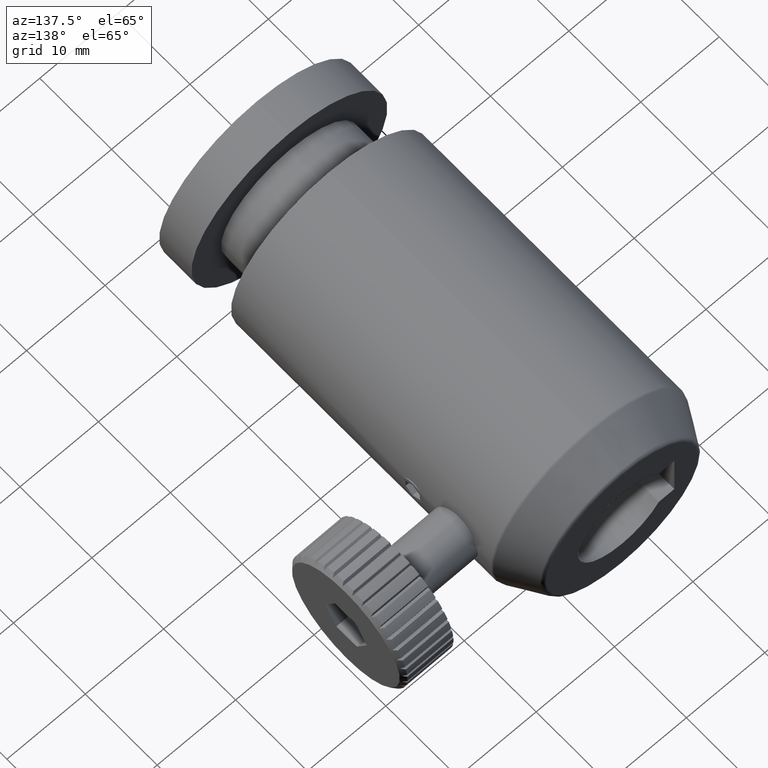
[diagram: clean part render]
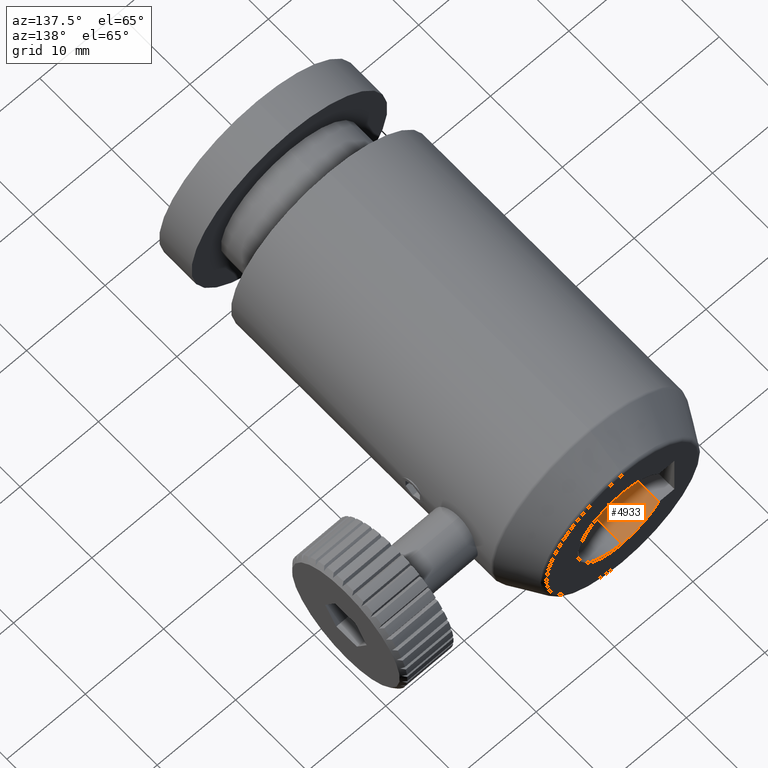
[diagram: same view with one face highlighted and labeled with its STEP entity id]
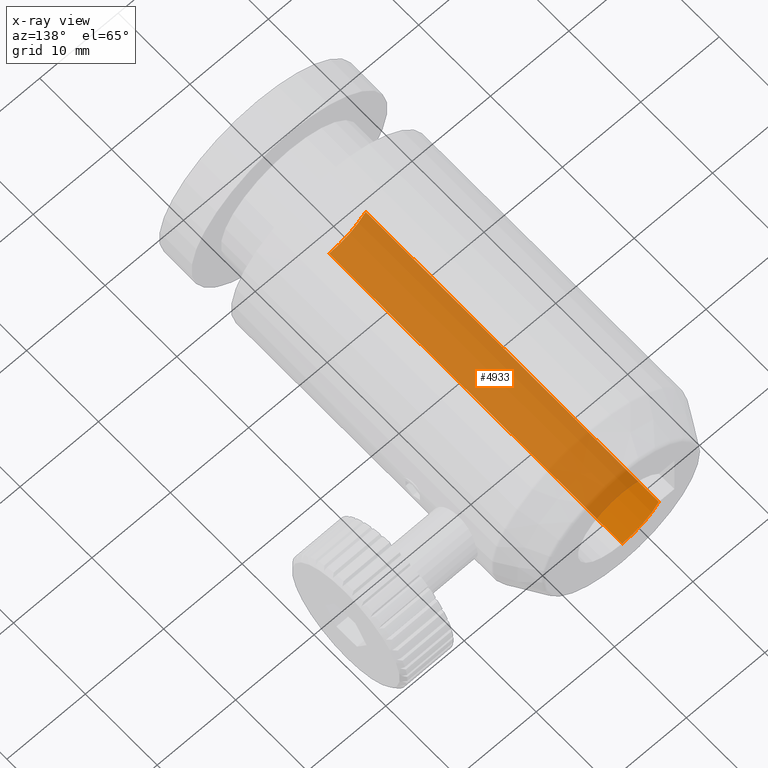
[diagram: x-ray of the same camera — body ghosted, the highlighted face saturated]
A machine part, auxiliary view. The second image highlights one B-rep face of the part: STEP entity #4933.
The next image is the same camera in x-ray: the body ghosted, the highlighted face saturated — about 91% of this face is hidden behind the body in this view.
In plain terms, the highlighted cylindrical surface (partial cylindrical patch) has radius 5.6332 mm, axis along (-0, -1, -0).
Its self-contained STEP definition (entity closure, byte-faithful):
#400 = AXIS2_PLACEMENT_3D ( 'NONE', #4163, #1990, #1179 ) ;
#569 = VERTEX_POINT ( 'NONE', #3818 ) ;
#575 = AXIS2_PLACEMENT_3D ( 'NONE', #3326, #3670, #1059 ) ;
#868 = DIRECTION ( 'NONE',  ( 0.0000000000000000000, 0.0000000000000000000, -1.000000000000000000 ) ) ;
#884 = CIRCLE ( 'NONE', #2685, 5.633197029416815700 ) ;
#1059 = DIRECTION ( 'NONE',  ( 0.0000000000000000000, 0.0000000000000000000, -1.000000000000000000 ) ) ;
#1179 = DIRECTION ( 'NONE',  ( 0.0000000000000000000, 0.0000000000000000000, -1.000000000000000000 ) ) ;
#1265 = EDGE_LOOP ( 'NONE', ( #5293, #5424, #2944, #1423 ) ) ;
#1423 = ORIENTED_EDGE ( 'NONE', *, *, #5585, .T. ) ;
#1441 = CARTESIAN_POINT ( 'NONE',  ( -5.265086014860968600, -5.485008935806521700, -3.633197029416815700 ) ) ;
#1569 = FACE_OUTER_BOUND ( 'NONE', #1265, .T. ) ;
#1594 = VECTOR ( 'NONE', #3303, 1000.000000000000000 ) ;
#1663 = VERTEX_POINT ( 'NONE', #3056 ) ;
#1694 = CARTESIAN_POINT ( 'NONE',  ( -5.265086014860968600, -5.485008935806521700, 2.000000000000000000 ) ) ;
#1990 = DIRECTION ( 'NONE',  ( -0.0000000000000000000, -1.000000000000000000, -0.0000000000000000000 ) ) ;
#2547 = DIRECTION ( 'NONE',  ( -0.0000000000000000000, -1.000000000000000000, -0.0000000000000000000 ) ) ;
#2685 = AXIS2_PLACEMENT_3D ( 'NONE', #1694, #4820, #868 ) ;
#2814 = VERTEX_POINT ( 'NONE', #1441 ) ;
#2821 = VERTEX_POINT ( 'NONE', #5652 ) ;
#2903 = EDGE_CURVE ( 'NONE', #2821, #2814, #5353, .T. ) ;
#2944 = ORIENTED_EDGE ( 'NONE', *, *, #3230, .F. ) ;
#2963 = VECTOR ( 'NONE', #2547, 1000.000000000000000 ) ;
#3056 = CARTESIAN_POINT ( 'NONE',  ( -9.948675319254602900, 35.31499106419347100, -1.129999999999997200 ) ) ;
#3087 = LINE ( 'NONE', #3692, #1594 ) ;
#3230 = EDGE_CURVE ( 'NONE', #569, #1663, #3087, .T. ) ;
#3303 = DIRECTION ( 'NONE',  ( 0.0000000000000000000, 1.000000000000000000, 0.0000000000000000000 ) ) ;
#3326 = CARTESIAN_POINT ( 'NONE',  ( -5.265086014860968600, -21.01514838293971400, 2.000000000000000000 ) ) ;
#3460 = CARTESIAN_POINT ( 'NONE',  ( -5.265086014860968600, -21.01514838293971400, -3.633197029416815700 ) ) ;
#3600 = CYLINDRICAL_SURFACE ( 'NONE', #575, 5.633197029416815700 ) ;
#3670 = DIRECTION ( 'NONE',  ( -0.0000000000000000000, -1.000000000000000000, -0.0000000000000000000 ) ) ;
#3692 = CARTESIAN_POINT ( 'NONE',  ( -9.948675319254602900, -21.01514838293971400, -1.129999999999997200 ) ) ;
#3801 = EDGE_CURVE ( 'NONE', #1663, #2821, #5197, .T. ) ;
#3818 = CARTESIAN_POINT ( 'NONE',  ( -9.948675319254602900, -5.485008935806525300, -1.129999999999997200 ) ) ;
#4163 = CARTESIAN_POINT ( 'NONE',  ( -5.265086014860968600, 35.31499106419347100, 2.000000000000000000 ) ) ;
#4820 = DIRECTION ( 'NONE',  ( -0.0000000000000000000, -1.000000000000000000, -0.0000000000000000000 ) ) ;
#4933 = ADVANCED_FACE ( 'NONE', ( #1569 ), #3600, .F. ) ;
#5197 = CIRCLE ( 'NONE', #400, 5.633197029416815700 ) ;
#5293 = ORIENTED_EDGE ( 'NONE', *, *, #2903, .F. ) ;
#5353 = LINE ( 'NONE', #3460, #2963 ) ;
#5424 = ORIENTED_EDGE ( 'NONE', *, *, #3801, .F. ) ;
#5585 = EDGE_CURVE ( 'NONE', #569, #2814, #884, .T. ) ;
#5652 = CARTESIAN_POINT ( 'NONE',  ( -5.265086014860968600, 35.31499106419347100, -3.633197029416815700 ) ) ;